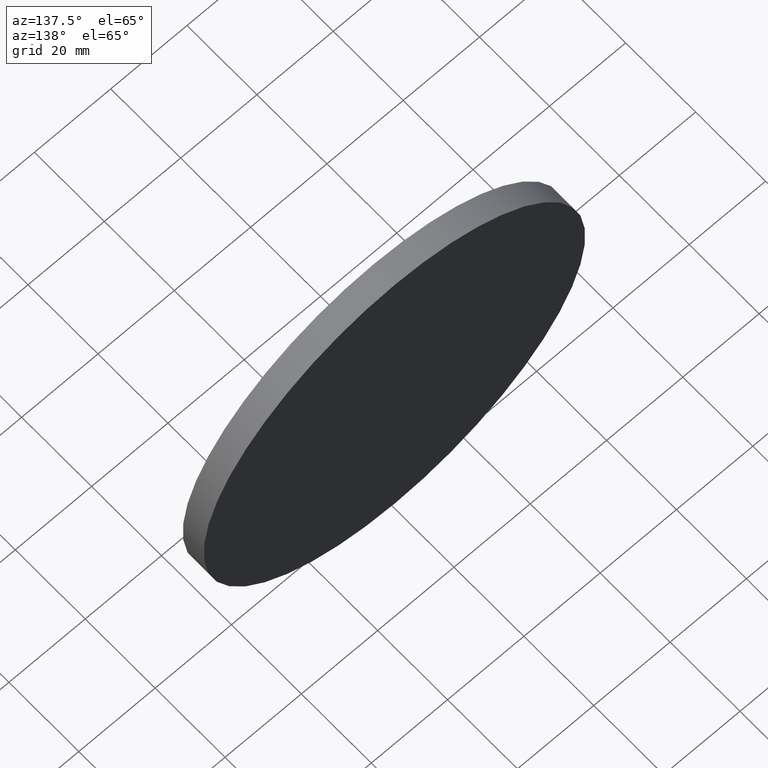
[diagram: clean part render]
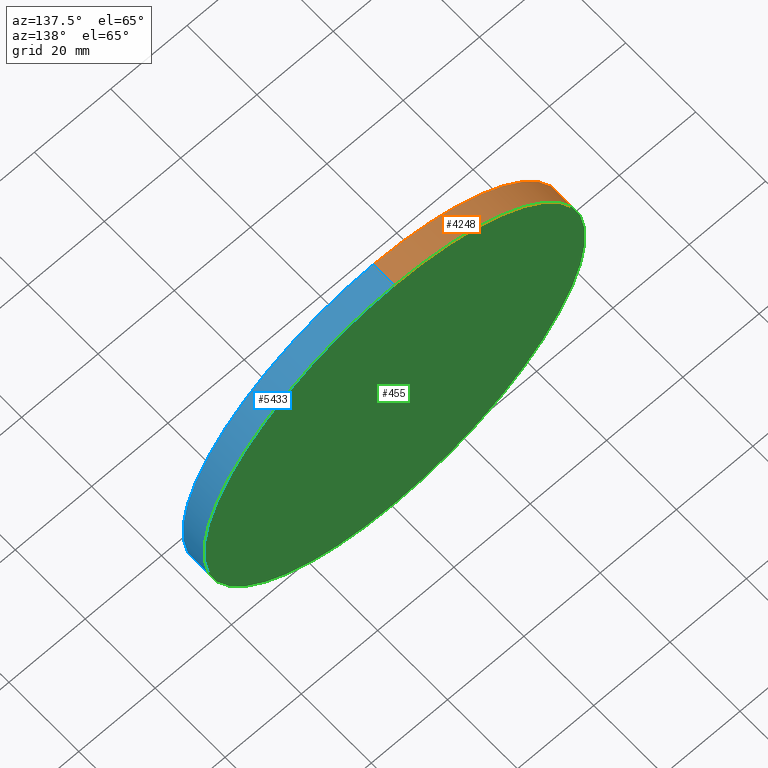
[diagram: same view with three faces highlighted in distinct colors, each labeled with its STEP entity id]
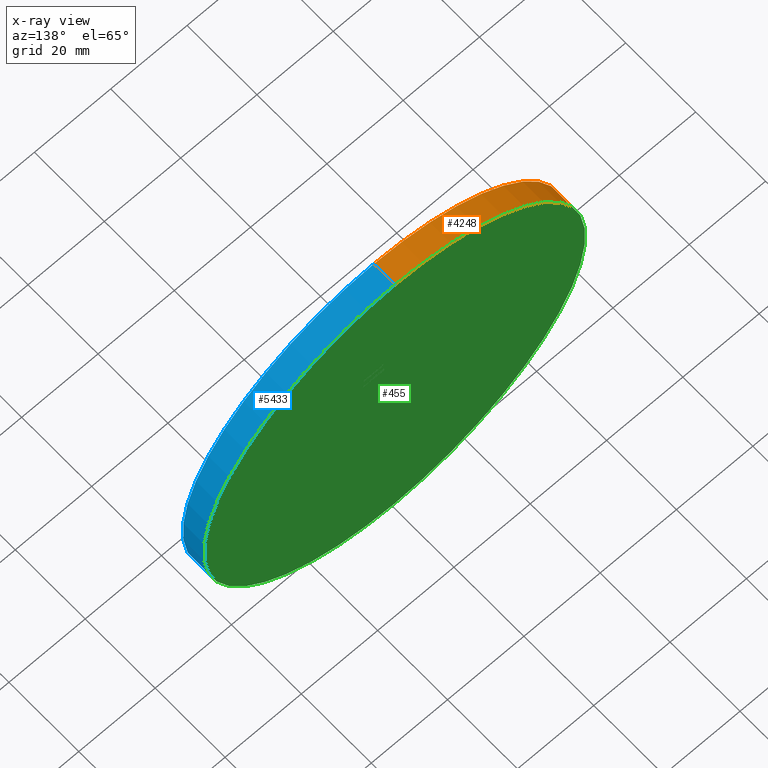
[diagram: x-ray of the same camera — body ghosted, the three highlighted faces saturated]
A machine part, auxiliary view with three faces highlighted in distinct colors.
The next image is the same camera in x-ray (body ghosted, the three faces saturated) — at least one of them is partly hidden behind the body in this view.
Their STEP definitions:

[orange] entity #4248 — the highlighted cylindrical surface (partial cylindrical patch) has radius 50 mm, axis along (-0, -1, -0).
#9 = CARTESIAN_POINT ( 'NONE',  ( 0.000000000000000000, 3.000000000000000000, -50.00000000000000000 ) ) ;
#137 = ORIENTED_EDGE ( 'NONE', *, *, #5488, .F. ) ;
#245 = EDGE_CURVE ( 'NONE', #10659, #4284, #1380, .T. ) ;
#621 = ORIENTED_EDGE ( 'NONE', *, *, #245, .T. ) ;
#760 = CYLINDRICAL_SURFACE ( 'NONE', #7247, 50.00000000000000000 ) ;
#1380 = LINE ( 'NONE', #9, #3515 ) ;
#1591 = CARTESIAN_POINT ( 'NONE',  ( 6.123233995736766085E-15, -3.000000000000000000, 50.00000000000000000 ) ) ;
#1873 = DIRECTION ( 'NONE',  ( 0.000000000000000000, 0.000000000000000000, 1.000000000000000000 ) ) ;
#1922 = AXIS2_PLACEMENT_3D ( 'NONE', #9538, #5817, #3162 ) ;
#2367 = EDGE_CURVE ( 'NONE', #4284, #9337, #11552, .T. ) ;
#2883 = LINE ( 'NONE', #10503, #6716 ) ;
#3162 = DIRECTION ( 'NONE',  ( 0.000000000000000000, 0.000000000000000000, 1.000000000000000000 ) ) ;
#3271 = CARTESIAN_POINT ( 'NONE',  ( 0.000000000000000000, 3.000000000000000000, 0.000000000000000000 ) ) ;
#3515 = VECTOR ( 'NONE', #7118, 1000.000000000000000 ) ;
#3560 = ORIENTED_EDGE ( 'NONE', *, *, #3772, .F. ) ;
#3702 = CARTESIAN_POINT ( 'NONE',  ( 0.000000000000000000, -3.000000000000000000, 0.000000000000000000 ) ) ;
#3772 = EDGE_CURVE ( 'NONE', #10659, #11487, #8164, .T. ) ;
#4248 = ADVANCED_FACE ( 'NONE', ( #5309 ), #760, .T. ) ;
#4284 = VERTEX_POINT ( 'NONE', #5124 ) ;
#4495 = DIRECTION ( 'NONE',  ( 0.000000000000000000, 1.000000000000000000, 0.000000000000000000 ) ) ;
#4928 = DIRECTION ( 'NONE',  ( -0.000000000000000000, -1.000000000000000000, -0.000000000000000000 ) ) ;
#5124 = CARTESIAN_POINT ( 'NONE',  ( 0.000000000000000000, -3.000000000000000000, -50.00000000000000000 ) ) ;
#5309 = FACE_OUTER_BOUND ( 'NONE', #11652, .T. ) ;
#5488 = EDGE_CURVE ( 'NONE', #11487, #9337, #2883, .T. ) ;
#5817 = DIRECTION ( 'NONE',  ( 0.000000000000000000, 1.000000000000000000, 0.000000000000000000 ) ) ;
#6716 = VECTOR ( 'NONE', #4928, 1000.000000000000000 ) ;
#7118 = DIRECTION ( 'NONE',  ( -0.000000000000000000, -1.000000000000000000, -0.000000000000000000 ) ) ;
#7247 = AXIS2_PLACEMENT_3D ( 'NONE', #3271, #10504, #8593 ) ;
#7962 = CARTESIAN_POINT ( 'NONE',  ( 0.000000000000000000, 3.000000000000000000, -50.00000000000000000 ) ) ;
#8164 = CIRCLE ( 'NONE', #1922, 50.00000000000000000 ) ;
#8593 = DIRECTION ( 'NONE',  ( 0.000000000000000000, 0.000000000000000000, -1.000000000000000000 ) ) ;
#8842 = CARTESIAN_POINT ( 'NONE',  ( 6.123233995736766085E-15, 3.000000000000000000, 50.00000000000000000 ) ) ;
#9337 = VERTEX_POINT ( 'NONE', #1591 ) ;
#9538 = CARTESIAN_POINT ( 'NONE',  ( 0.000000000000000000, 3.000000000000000000, 0.000000000000000000 ) ) ;
#9983 = ORIENTED_EDGE ( 'NONE', *, *, #2367, .T. ) ;
#10503 = CARTESIAN_POINT ( 'NONE',  ( 6.123233995736766085E-15, 3.000000000000000000, 50.00000000000000000 ) ) ;
#10504 = DIRECTION ( 'NONE',  ( -0.000000000000000000, -1.000000000000000000, -0.000000000000000000 ) ) ;
#10659 = VERTEX_POINT ( 'NONE', #7962 ) ;
#11150 = AXIS2_PLACEMENT_3D ( 'NONE', #3702, #4495, #1873 ) ;
#11487 = VERTEX_POINT ( 'NONE', #8842 ) ;
#11552 = CIRCLE ( 'NONE', #11150, 50.00000000000000000 ) ;
#11652 = EDGE_LOOP ( 'NONE', ( #137, #3560, #621, #9983 ) ) ;

[blue] entity #5433 — the highlighted cylindrical surface (partial cylindrical patch) has radius 50 mm, axis along (-0, -1, -0).
#9 = CARTESIAN_POINT ( 'NONE',  ( 0.000000000000000000, 3.000000000000000000, -50.00000000000000000 ) ) ;
#53 = DIRECTION ( 'NONE',  ( 0.000000000000000000, 0.000000000000000000, 1.000000000000000000 ) ) ;
#245 = EDGE_CURVE ( 'NONE', #10659, #4284, #1380, .T. ) ;
#505 = CARTESIAN_POINT ( 'NONE',  ( 0.000000000000000000, 3.000000000000000000, 0.000000000000000000 ) ) ;
#1380 = LINE ( 'NONE', #9, #3515 ) ;
#1591 = CARTESIAN_POINT ( 'NONE',  ( 6.123233995736766085E-15, -3.000000000000000000, 50.00000000000000000 ) ) ;
#2594 = CYLINDRICAL_SURFACE ( 'NONE', #11558, 50.00000000000000000 ) ;
#2682 = AXIS2_PLACEMENT_3D ( 'NONE', #6350, #10026, #53 ) ;
#2883 = LINE ( 'NONE', #10503, #6716 ) ;
#3112 = ORIENTED_EDGE ( 'NONE', *, *, #6318, .F. ) ;
#3165 = FACE_OUTER_BOUND ( 'NONE', #6226, .T. ) ;
#3294 = ORIENTED_EDGE ( 'NONE', *, *, #5488, .T. ) ;
#3515 = VECTOR ( 'NONE', #7118, 1000.000000000000000 ) ;
#4284 = VERTEX_POINT ( 'NONE', #5124 ) ;
#4316 = CIRCLE ( 'NONE', #11165, 50.00000000000000000 ) ;
#4873 = DIRECTION ( 'NONE',  ( 0.000000000000000000, 1.000000000000000000, 0.000000000000000000 ) ) ;
#4928 = DIRECTION ( 'NONE',  ( -0.000000000000000000, -1.000000000000000000, -0.000000000000000000 ) ) ;
#5124 = CARTESIAN_POINT ( 'NONE',  ( 0.000000000000000000, -3.000000000000000000, -50.00000000000000000 ) ) ;
#5433 = ADVANCED_FACE ( 'NONE', ( #3165 ), #2594, .T. ) ;
#5488 = EDGE_CURVE ( 'NONE', #11487, #9337, #2883, .T. ) ;
#5739 = CARTESIAN_POINT ( 'NONE',  ( 0.000000000000000000, 3.000000000000000000, 0.000000000000000000 ) ) ;
#6226 = EDGE_LOOP ( 'NONE', ( #3112, #3294, #8429, #8139 ) ) ;
#6318 = EDGE_CURVE ( 'NONE', #11487, #10659, #4316, .T. ) ;
#6350 = CARTESIAN_POINT ( 'NONE',  ( 0.000000000000000000, -3.000000000000000000, 0.000000000000000000 ) ) ;
#6716 = VECTOR ( 'NONE', #4928, 1000.000000000000000 ) ;
#7021 = EDGE_CURVE ( 'NONE', #9337, #4284, #11225, .T. ) ;
#7118 = DIRECTION ( 'NONE',  ( -0.000000000000000000, -1.000000000000000000, -0.000000000000000000 ) ) ;
#7962 = CARTESIAN_POINT ( 'NONE',  ( 0.000000000000000000, 3.000000000000000000, -50.00000000000000000 ) ) ;
#8139 = ORIENTED_EDGE ( 'NONE', *, *, #245, .F. ) ;
#8429 = ORIENTED_EDGE ( 'NONE', *, *, #7021, .T. ) ;
#8592 = DIRECTION ( 'NONE',  ( 0.000000000000000000, 0.000000000000000000, -1.000000000000000000 ) ) ;
#8842 = CARTESIAN_POINT ( 'NONE',  ( 6.123233995736766085E-15, 3.000000000000000000, 50.00000000000000000 ) ) ;
#9337 = VERTEX_POINT ( 'NONE', #1591 ) ;
#10026 = DIRECTION ( 'NONE',  ( 0.000000000000000000, 1.000000000000000000, 0.000000000000000000 ) ) ;
#10351 = DIRECTION ( 'NONE',  ( -0.000000000000000000, -1.000000000000000000, -0.000000000000000000 ) ) ;
#10503 = CARTESIAN_POINT ( 'NONE',  ( 6.123233995736766085E-15, 3.000000000000000000, 50.00000000000000000 ) ) ;
#10659 = VERTEX_POINT ( 'NONE', #7962 ) ;
#11165 = AXIS2_PLACEMENT_3D ( 'NONE', #5739, #4873, #11184 ) ;
#11184 = DIRECTION ( 'NONE',  ( 0.000000000000000000, 0.000000000000000000, 1.000000000000000000 ) ) ;
#11225 = CIRCLE ( 'NONE', #2682, 50.00000000000000000 ) ;
#11487 = VERTEX_POINT ( 'NONE', #8842 ) ;
#11558 = AXIS2_PLACEMENT_3D ( 'NONE', #505, #10351, #8592 ) ;

[green] entity #455 — the highlighted planar face has unit normal (0, 1, 0).
#455 = ADVANCED_FACE ( 'NONE', ( #10857 ), #2506, .T. ) ;
#1922 = AXIS2_PLACEMENT_3D ( 'NONE', #9538, #5817, #3162 ) ;
#2506 = PLANE ( 'NONE',  #4859 ) ;
#3162 = DIRECTION ( 'NONE',  ( 0.000000000000000000, 0.000000000000000000, 1.000000000000000000 ) ) ;
#3762 = EDGE_LOOP ( 'NONE', ( #11670, #9547 ) ) ;
#3772 = EDGE_CURVE ( 'NONE', #10659, #11487, #8164, .T. ) ;
#4247 = DIRECTION ( 'NONE',  ( 0.000000000000000000, -0.000000000000000000, 1.000000000000000000 ) ) ;
#4316 = CIRCLE ( 'NONE', #11165, 50.00000000000000000 ) ;
#4403 = CARTESIAN_POINT ( 'NONE',  ( 0.000000000000000000, 3.000000000000000000, 0.000000000000000000 ) ) ;
#4859 = AXIS2_PLACEMENT_3D ( 'NONE', #4403, #6067, #4247 ) ;
#4873 = DIRECTION ( 'NONE',  ( 0.000000000000000000, 1.000000000000000000, 0.000000000000000000 ) ) ;
#5739 = CARTESIAN_POINT ( 'NONE',  ( 0.000000000000000000, 3.000000000000000000, 0.000000000000000000 ) ) ;
#5817 = DIRECTION ( 'NONE',  ( 0.000000000000000000, 1.000000000000000000, 0.000000000000000000 ) ) ;
#6067 = DIRECTION ( 'NONE',  ( 0.000000000000000000, 1.000000000000000000, 0.000000000000000000 ) ) ;
#6318 = EDGE_CURVE ( 'NONE', #11487, #10659, #4316, .T. ) ;
#7962 = CARTESIAN_POINT ( 'NONE',  ( 0.000000000000000000, 3.000000000000000000, -50.00000000000000000 ) ) ;
#8164 = CIRCLE ( 'NONE', #1922, 50.00000000000000000 ) ;
#8842 = CARTESIAN_POINT ( 'NONE',  ( 6.123233995736766085E-15, 3.000000000000000000, 50.00000000000000000 ) ) ;
#9538 = CARTESIAN_POINT ( 'NONE',  ( 0.000000000000000000, 3.000000000000000000, 0.000000000000000000 ) ) ;
#9547 = ORIENTED_EDGE ( 'NONE', *, *, #6318, .T. ) ;
#10659 = VERTEX_POINT ( 'NONE', #7962 ) ;
#10857 = FACE_OUTER_BOUND ( 'NONE', #3762, .T. ) ;
#11165 = AXIS2_PLACEMENT_3D ( 'NONE', #5739, #4873, #11184 ) ;
#11184 = DIRECTION ( 'NONE',  ( 0.000000000000000000, 0.000000000000000000, 1.000000000000000000 ) ) ;
#11487 = VERTEX_POINT ( 'NONE', #8842 ) ;
#11670 = ORIENTED_EDGE ( 'NONE', *, *, #3772, .T. ) ;